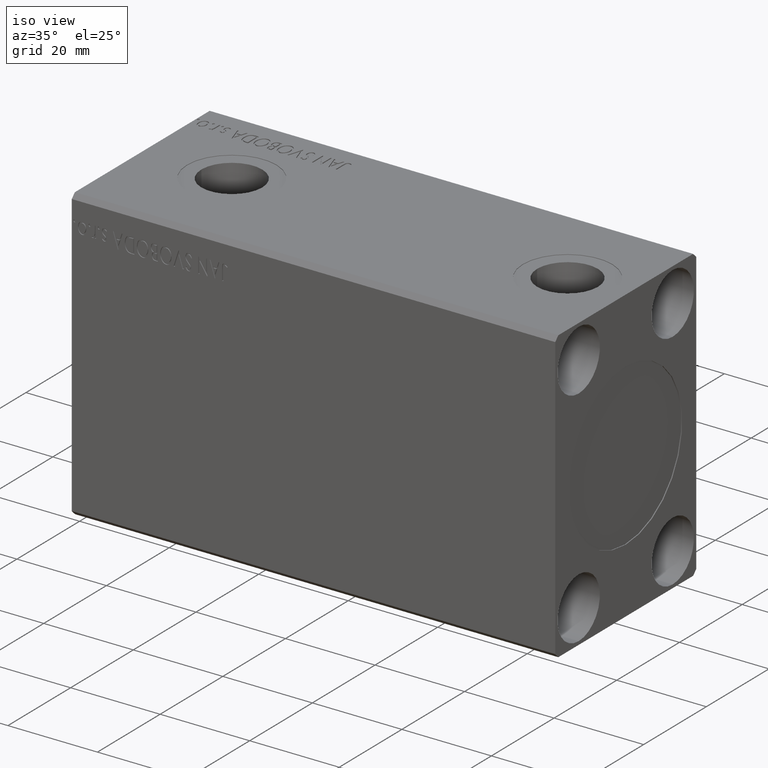
[diagram: clean part render]
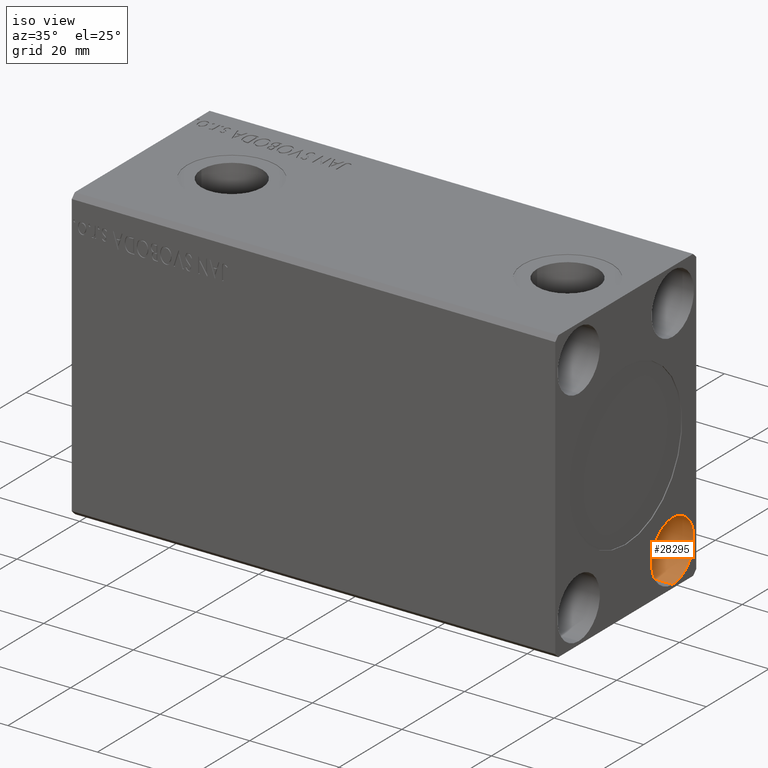
[diagram: same view with one face highlighted and labeled with its STEP entity id]
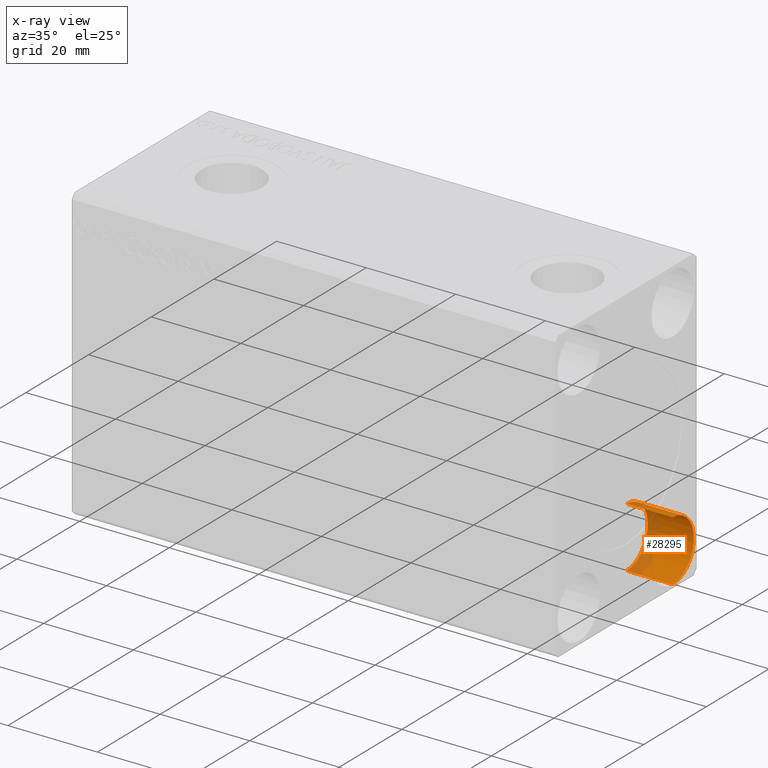
[diagram: x-ray of the same camera — body ghosted, the highlighted face saturated]
A machine part, iso view. The second image highlights one B-rep face of the part: STEP entity #28295.
The next image is the same camera in x-ray: the body ghosted, the highlighted face saturated — about 25% of this face is hidden behind the body in this view.
In plain terms, the highlighted cylindrical surface (partial cylindrical patch) has radius 6.75 mm, axis along (1, -0, -0).
Its self-contained STEP definition (entity closure, byte-faithful):
#3860 = EDGE_CURVE ( 'NONE', #40389, #23557, #22187, .T. ) ;
#4295 = VECTOR ( 'NONE', #36368, 1000.000000000000000 ) ;
#8669 = DIRECTION ( 'NONE',  ( 0.000000000000000000, 0.000000000000000000, 1.000000000000000000 ) ) ;
#10033 = DIRECTION ( 'NONE',  ( 0.000000000000000000, 0.000000000000000000, -1.000000000000000000 ) ) ;
#10087 = LINE ( 'NONE', #13528, #4295 ) ;
#10870 = EDGE_CURVE ( 'NONE', #32922, #23557, #26898, .T. ) ;
#12703 = CARTESIAN_POINT ( 'NONE',  ( 97.66999999999998749, 15.00000000000000000, -31.74999999999999289 ) ) ;
#12856 = VECTOR ( 'NONE', #38138, 1000.000000000000000 ) ;
#13528 = CARTESIAN_POINT ( 'NONE',  ( 97.66999999999998749, 15.00000000000000000, -18.25000000000001066 ) ) ;
#15134 = CARTESIAN_POINT ( 'NONE',  ( 97.66999999999998749, 15.00000000000000000, -25.00000000000000000 ) ) ;
#16644 = ORIENTED_EDGE ( 'NONE', *, *, #38564, .T. ) ;
#17972 = CARTESIAN_POINT ( 'NONE',  ( 108.0000000000000000, 15.00000000000000000, -31.74999999999999289 ) ) ;
#18780 = EDGE_CURVE ( 'NONE', #23761, #32922, #10087, .T. ) ;
#19525 = ORIENTED_EDGE ( 'NONE', *, *, #10870, .F. ) ;
#19966 = DIRECTION ( 'NONE',  ( -1.000000000000000000, -0.000000000000000000, -0.000000000000000000 ) ) ;
#22187 = LINE ( 'NONE', #12703, #12856 ) ;
#23557 = VERTEX_POINT ( 'NONE', #17972 ) ;
#23626 = DIRECTION ( 'NONE',  ( 0.000000000000000000, 0.000000000000000000, 1.000000000000000000 ) ) ;
#23761 = VERTEX_POINT ( 'NONE', #36671 ) ;
#23976 = EDGE_LOOP ( 'NONE', ( #33248, #16644, #32340, #19525 ) ) ;
#26407 = FACE_OUTER_BOUND ( 'NONE', #23976, .T. ) ;
#26634 = AXIS2_PLACEMENT_3D ( 'NONE', #15134, #35158, #8669 ) ;
#26898 = CIRCLE ( 'NONE', #28305, 6.749999999999992006 ) ;
#28295 = ADVANCED_FACE ( 'NONE', ( #26407 ), #39544, .F. ) ;
#28305 = AXIS2_PLACEMENT_3D ( 'NONE', #33971, #19966, #23626 ) ;
#29230 = CARTESIAN_POINT ( 'NONE',  ( 97.66999999999998749, 15.00000000000000000, -25.00000000000000000 ) ) ;
#31605 = CARTESIAN_POINT ( 'NONE',  ( 108.0000000000000000, 15.00000000000000000, -18.25000000000001066 ) ) ;
#32340 = ORIENTED_EDGE ( 'NONE', *, *, #3860, .T. ) ;
#32922 = VERTEX_POINT ( 'NONE', #31605 ) ;
#33248 = ORIENTED_EDGE ( 'NONE', *, *, #18780, .F. ) ;
#33971 = CARTESIAN_POINT ( 'NONE',  ( 108.0000000000000000, 15.00000000000000000, -25.00000000000000000 ) ) ;
#35158 = DIRECTION ( 'NONE',  ( -1.000000000000000000, -0.000000000000000000, -0.000000000000000000 ) ) ;
#36368 = DIRECTION ( 'NONE',  ( 1.000000000000000000, -0.000000000000000000, -0.000000000000000000 ) ) ;
#36671 = CARTESIAN_POINT ( 'NONE',  ( 97.66999999999998749, 15.00000000000000000, -18.25000000000001066 ) ) ;
#38138 = DIRECTION ( 'NONE',  ( 1.000000000000000000, -0.000000000000000000, -0.000000000000000000 ) ) ;
#38564 = EDGE_CURVE ( 'NONE', #23761, #40389, #38994, .T. ) ;
#38994 = CIRCLE ( 'NONE', #26634, 6.749999999999992006 ) ;
#39544 = CYLINDRICAL_SURFACE ( 'NONE', #39576, 6.749999999999992006 ) ;
#39549 = CARTESIAN_POINT ( 'NONE',  ( 97.66999999999998749, 15.00000000000000000, -31.74999999999999289 ) ) ;
#39576 = AXIS2_PLACEMENT_3D ( 'NONE', #29230, #42354, #10033 ) ;
#40389 = VERTEX_POINT ( 'NONE', #39549 ) ;
#42354 = DIRECTION ( 'NONE',  ( 1.000000000000000000, -0.000000000000000000, -0.000000000000000000 ) ) ;